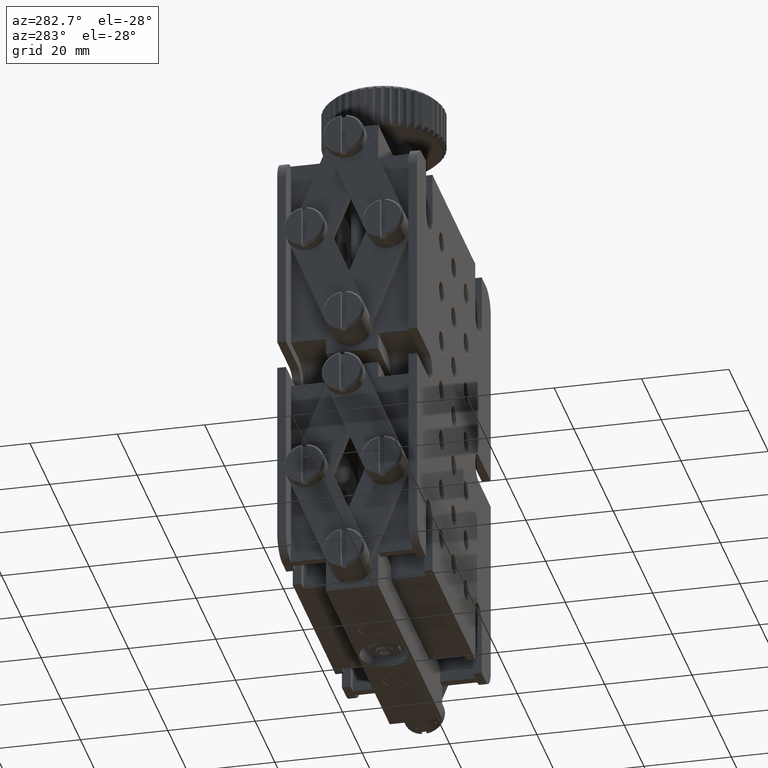
[diagram: clean part render]
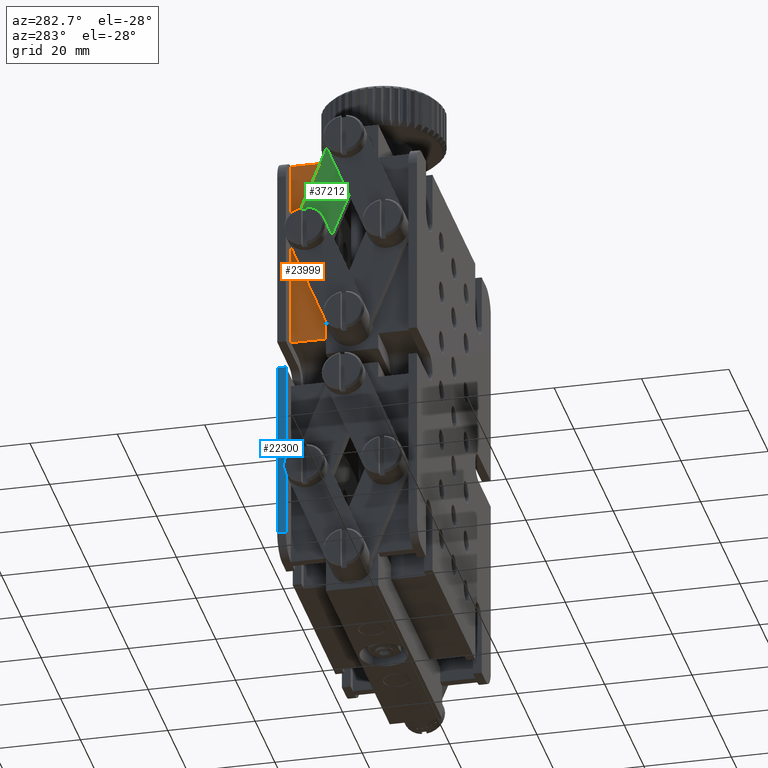
[diagram: same view with three faces highlighted in distinct colors, each labeled with its STEP entity id]
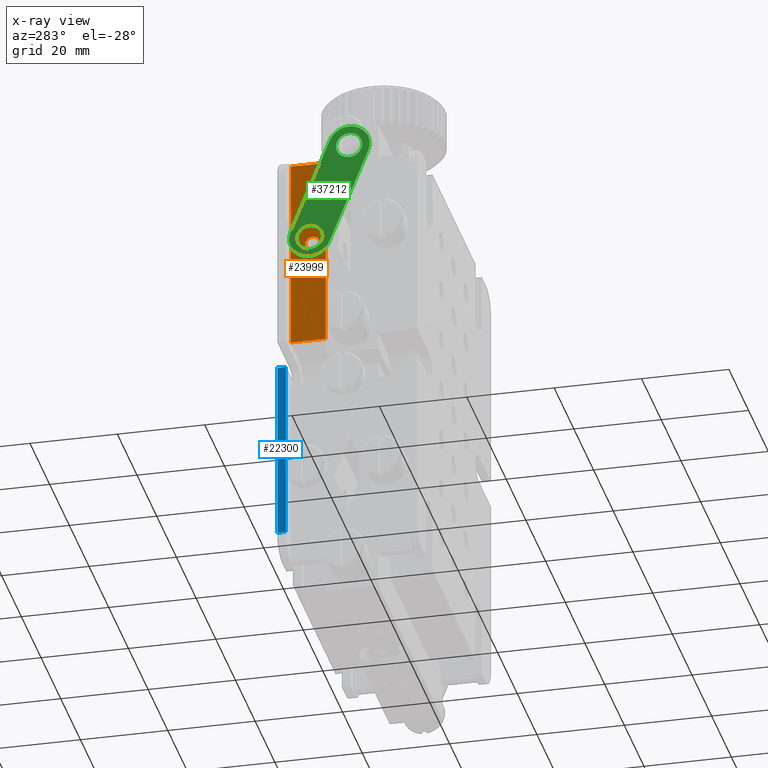
[diagram: x-ray of the same camera — body ghosted, the three highlighted faces saturated]
A machine part, auxiliary view with three faces highlighted in distinct colors.
The next image is the same camera in x-ray (body ghosted, the three faces saturated) — at least one of them is partly hidden behind the body in this view.
Their STEP definitions:

[orange] entity #23999 — the highlighted planar face has unit normal (1, -0, 0).
#737 = ORIENTED_EDGE ( 'NONE', *, *, #19887, .F. ) ;
#867 = ORIENTED_EDGE ( 'NONE', *, *, #3485, .F. ) ;
#1809 = VECTOR ( 'NONE', #17534, 1000.000000000000000 ) ;
#1864 = CARTESIAN_POINT ( 'NONE',  ( -32.49999999999997900, 14.99999999999987600, 29.99999999999981900 ) ) ;
#2259 = EDGE_LOOP ( 'NONE', ( #737, #35190 ) ) ;
#2713 = DIRECTION ( 'NONE',  ( -1.944780049803937700E-015, 3.469446951953613400E-018, 1.000000000000000000 ) ) ;
#3154 = EDGE_CURVE ( 'NONE', #4642, #39626, #9770, .T. ) ;
#3196 = LINE ( 'NONE', #15525, #20284 ) ;
#3485 = EDGE_CURVE ( 'NONE', #29186, #9886, #3196, .T. ) ;
#4642 = VERTEX_POINT ( 'NONE', #37792 ) ;
#5113 = DIRECTION ( 'NONE',  ( 0.0000000000000000000, 0.0000000000000000000, 1.000000000000000000 ) ) ;
#5135 = CARTESIAN_POINT ( 'NONE',  ( -32.50000000000002100, 19.99999999999998200, 49.99999999999982200 ) ) ;
#7116 = CARTESIAN_POINT ( 'NONE',  ( -32.50000000000002100, 11.99999999999998200, 49.99999999999982200 ) ) ;
#7176 = EDGE_CURVE ( 'NONE', #9886, #39626, #27454, .T. ) ;
#7471 = FACE_BOUND ( 'NONE', #2259, .T. ) ;
#8375 = DIRECTION ( 'NONE',  ( 1.944780049803937700E-015, -3.469446951953613400E-018, -1.000000000000000000 ) ) ;
#9613 = LINE ( 'NONE', #38423, #26694 ) ;
#9770 = LINE ( 'NONE', #7116, #26854 ) ;
#9886 = VERTEX_POINT ( 'NONE', #32085 ) ;
#9967 = CARTESIAN_POINT ( 'NONE',  ( -32.50000000000002100, 11.99999999999998200, 49.99999999999982200 ) ) ;
#11484 = PLANE ( 'NONE',  #25028 ) ;
#15525 = CARTESIAN_POINT ( 'NONE',  ( -32.50000000000002100, 19.99999999999998200, 49.99999999999982200 ) ) ;
#16009 = CARTESIAN_POINT ( 'NONE',  ( -32.49999999999997900, 14.99999999999987600, 29.99999999999981900 ) ) ;
#17431 = EDGE_LOOP ( 'NONE', ( #867, #41056, #32677, #31487 ) ) ;
#17503 = EDGE_CURVE ( 'NONE', #39594, #37895, #32674, .T. ) ;
#17534 = DIRECTION ( 'NONE',  ( -1.222721269176194200E-016, -1.000000000000000000, 3.469446951953613400E-018 ) ) ;
#19228 = DIRECTION ( 'NONE',  ( 0.0000000000000000000, 0.0000000000000000000, 1.000000000000000000 ) ) ;
#19887 = EDGE_CURVE ( 'NONE', #37895, #39594, #34874, .T. ) ;
#20284 = VECTOR ( 'NONE', #2713, 1000.000000000000000 ) ;
#21508 = CARTESIAN_POINT ( 'NONE',  ( -32.49999999999992900, 19.99999999999998200, 5.499999999999809000 ) ) ;
#23556 = FACE_OUTER_BOUND ( 'NONE', #17431, .T. ) ;
#23999 = ADVANCED_FACE ( 'NONE', ( #7471, #23556 ), #11484, .F. ) ;
#24357 = DIRECTION ( 'NONE',  ( -1.000000000000000000, 1.222721269176264700E-016, -1.944780049804103000E-015 ) ) ;
#25028 = AXIS2_PLACEMENT_3D ( 'NONE', #5135, #27623, #8375 ) ;
#26694 = VECTOR ( 'NONE', #41381, 1000.000000000000000 ) ;
#26854 = VECTOR ( 'NONE', #29575, 1000.000000000000000 ) ;
#27454 = LINE ( 'NONE', #33743, #1809 ) ;
#27623 = DIRECTION ( 'NONE',  ( 1.000000000000000000, -1.222721269176264400E-016, 1.944780049803937700E-015 ) ) ;
#27795 = EDGE_CURVE ( 'NONE', #29186, #4642, #9613, .T. ) ;
#29085 = AXIS2_PLACEMENT_3D ( 'NONE', #16009, #38422, #19228 ) ;
#29186 = VERTEX_POINT ( 'NONE', #21508 ) ;
#29575 = DIRECTION ( 'NONE',  ( -1.944780049803937700E-015, 3.469446951953613400E-018, 1.000000000000000000 ) ) ;
#30970 = CARTESIAN_POINT ( 'NONE',  ( -32.49999999999997900, 14.99999999999987600, 31.64999999999981000 ) ) ;
#31487 = ORIENTED_EDGE ( 'NONE', *, *, #7176, .F. ) ;
#32085 = CARTESIAN_POINT ( 'NONE',  ( -32.50000000000002100, 19.99999999999998200, 49.99999999999982200 ) ) ;
#32674 = CIRCLE ( 'NONE', #36236, 1.649999999999991700 ) ;
#32677 = ORIENTED_EDGE ( 'NONE', *, *, #3154, .T. ) ;
#33743 = CARTESIAN_POINT ( 'NONE',  ( -32.50000000000002100, 19.99999999999998200, 49.99999999999982200 ) ) ;
#34874 = CIRCLE ( 'NONE', #29085, 1.649999999999991700 ) ;
#35190 = ORIENTED_EDGE ( 'NONE', *, *, #17503, .F. ) ;
#35425 = CARTESIAN_POINT ( 'NONE',  ( -32.49999999999997900, 14.99999999999987600, 28.34999999999982700 ) ) ;
#36236 = AXIS2_PLACEMENT_3D ( 'NONE', #1864, #24357, #5113 ) ;
#37792 = CARTESIAN_POINT ( 'NONE',  ( -32.49999999999993600, 11.99999999999998200, 5.499999999999809900 ) ) ;
#37895 = VERTEX_POINT ( 'NONE', #30970 ) ;
#38422 = DIRECTION ( 'NONE',  ( -1.000000000000000000, 1.222721269176264700E-016, -1.944780049804103000E-015 ) ) ;
#38423 = CARTESIAN_POINT ( 'NONE',  ( -32.49999999999992900, 41.09502310972937500, 5.499999999999809900 ) ) ;
#39594 = VERTEX_POINT ( 'NONE', #35425 ) ;
#39626 = VERTEX_POINT ( 'NONE', #9967 ) ;
#41056 = ORIENTED_EDGE ( 'NONE', *, *, #27795, .T. ) ;
#41381 = DIRECTION ( 'NONE',  ( -1.222721269176194200E-016, -1.000000000000000000, 3.469446951953613400E-018 ) ) ;

[blue] entity #22300 — the highlighted planar face has unit normal (1, -0, 0).
#3554 = CARTESIAN_POINT ( 'NONE',  ( -37.49999999999991500, 21.99999999999998600, -3.250000000000200300 ) ) ;
#3571 = ORIENTED_EDGE ( 'NONE', *, *, #25687, .F. ) ;
#3722 = VECTOR ( 'NONE', #32859, 1000.000000000000000 ) ;
#5244 = ORIENTED_EDGE ( 'NONE', *, *, #36140, .F. ) ;
#6482 = LINE ( 'NONE', #11200, #15027 ) ;
#7513 = VERTEX_POINT ( 'NONE', #39771 ) ;
#8992 = EDGE_CURVE ( 'NONE', #23107, #19093, #34784, .T. ) ;
#11200 = CARTESIAN_POINT ( 'NONE',  ( -37.49999999999982900, 21.99999999999998600, -45.00000000000022700 ) ) ;
#11760 = DIRECTION ( 'NONE',  ( 1.000000000000000000, -1.222721269176264400E-016, 2.014168988843010000E-015 ) ) ;
#15027 = VECTOR ( 'NONE', #24267, 1000.000000000000000 ) ;
#15927 = EDGE_LOOP ( 'NONE', ( #3571, #34594, #5244, #22191 ) ) ;
#16670 = CARTESIAN_POINT ( 'NONE',  ( -37.49999999999991500, 29.99999999999998900, -3.250000000000200300 ) ) ;
#17015 = VECTOR ( 'NONE', #28466, 1000.000000000000000 ) ;
#17628 = VECTOR ( 'NONE', #39146, 1000.000000000000000 ) ;
#19093 = VERTEX_POINT ( 'NONE', #33346 ) ;
#21208 = PLANE ( 'NONE',  #32751 ) ;
#22191 = ORIENTED_EDGE ( 'NONE', *, *, #23973, .T. ) ;
#22300 = ADVANCED_FACE ( 'NONE', ( #40889 ), #21208, .F. ) ;
#23107 = VERTEX_POINT ( 'NONE', #3554 ) ;
#23973 = EDGE_CURVE ( 'NONE', #37592, #7513, #6482, .T. ) ;
#24267 = DIRECTION ( 'NONE',  ( -1.222721269176194200E-016, -1.000000000000000000, 3.469446951953613400E-018 ) ) ;
#25562 = LINE ( 'NONE', #31739, #17015 ) ;
#25687 = EDGE_CURVE ( 'NONE', #19093, #7513, #25562, .T. ) ;
#28466 = DIRECTION ( 'NONE',  ( 1.944780049803937700E-015, -3.469446951953613400E-018, -1.000000000000000000 ) ) ;
#29383 = LINE ( 'NONE', #29607, #3722 ) ;
#29607 = CARTESIAN_POINT ( 'NONE',  ( -37.49999999999982200, 21.99999999999998600, -50.00000000000023400 ) ) ;
#31026 = CARTESIAN_POINT ( 'NONE',  ( -37.49999999999982200, 21.99999999999998600, -50.00000000000023400 ) ) ;
#31739 = CARTESIAN_POINT ( 'NONE',  ( -37.50000000000002100, 19.99999999999998600, 49.99999999999980800 ) ) ;
#32751 = AXIS2_PLACEMENT_3D ( 'NONE', #31026, #11760, #34284 ) ;
#32859 = DIRECTION ( 'NONE',  ( -2.014168988843010000E-015, 3.469446951953621900E-018, 1.000000000000000000 ) ) ;
#33346 = CARTESIAN_POINT ( 'NONE',  ( -37.49999999999991500, 19.99999999999998600, -3.250000000000200300 ) ) ;
#34284 = DIRECTION ( 'NONE',  ( 2.014168988843010000E-015, -3.469446951953621900E-018, -1.000000000000000000 ) ) ;
#34594 = ORIENTED_EDGE ( 'NONE', *, *, #8992, .F. ) ;
#34784 = LINE ( 'NONE', #16670, #17628 ) ;
#36140 = EDGE_CURVE ( 'NONE', #37592, #23107, #29383, .T. ) ;
#37592 = VERTEX_POINT ( 'NONE', #38708 ) ;
#38708 = CARTESIAN_POINT ( 'NONE',  ( -37.49999999999982900, 21.99999999999998600, -45.00000000000022700 ) ) ;
#39146 = DIRECTION ( 'NONE',  ( -1.222721269176194200E-016, -1.000000000000000000, 3.469446951953613400E-018 ) ) ;
#39771 = CARTESIAN_POINT ( 'NONE',  ( -37.49999999999982900, 19.99999999999998600, -45.00000000000022700 ) ) ;
#40889 = FACE_OUTER_BOUND ( 'NONE', #15927, .T. ) ;

[green] entity #37212 — the highlighted planar face has unit normal (-1, -0, 0).
#516 = EDGE_CURVE ( 'NONE', #29502, #6767, #28377, .T. ) ;
#997 = AXIS2_PLACEMENT_3D ( 'NONE', #11364, #33855, #14610 ) ;
#1009 = AXIS2_PLACEMENT_3D ( 'NONE', #25124, #5875, #28343 ) ;
#1129 = CARTESIAN_POINT ( 'NONE',  ( -35.50000000000002100, 6.000000000000721200, 52.24859546128715900 ) ) ;
#1336 = PLANE ( 'NONE',  #21986 ) ;
#1481 = DIRECTION ( 'NONE',  ( -1.000000000000000000, -4.367837696716549100E-024, 3.364437317844229000E-024 ) ) ;
#2342 = VERTEX_POINT ( 'NONE', #2541 ) ;
#2541 = CARTESIAN_POINT ( 'NONE',  ( -35.50000000000002100, 19.40336785171307800, 31.78124999999970500 ) ) ;
#2862 = EDGE_CURVE ( 'NONE', #37524, #11499, #17871, .T. ) ;
#3003 = LINE ( 'NONE', #9662, #20094 ) ;
#3068 = CARTESIAN_POINT ( 'NONE',  ( -35.50000000000002100, 4.875000000000815300, 55.02966989394806800 ) ) ;
#3527 = CARTESIAN_POINT ( 'NONE',  ( -35.50000000000002100, 10.40336785171383100, 54.02984546128700300 ) ) ;
#4026 = FACE_OUTER_BOUND ( 'NONE', #13894, .T. ) ;
#4383 = DIRECTION ( 'NONE',  ( 0.0000000000000000000, -0.3749999999999688600, 0.9270248108869705300 ) ) ;
#4400 = LINE ( 'NONE', #9004, #20510 ) ;
#5021 = FACE_BOUND ( 'NONE', #12504, .T. ) ;
#5425 = DIRECTION ( 'NONE',  ( -1.000000000000000000, -4.367837696716549100E-024, 3.364437317844229000E-024 ) ) ;
#5782 = ORIENTED_EDGE ( 'NONE', *, *, #14381, .T. ) ;
#5875 = DIRECTION ( 'NONE',  ( -1.000000000000000000, -4.367837696716549100E-024, 3.364437317844229000E-024 ) ) ;
#6767 = VERTEX_POINT ( 'NONE', #27389 ) ;
#6894 = EDGE_CURVE ( 'NONE', #26082, #34783, #4400, .T. ) ;
#8679 = EDGE_CURVE ( 'NONE', #2342, #8937, #36321, .T. ) ;
#8937 = VERTEX_POINT ( 'NONE', #13155 ) ;
#9004 = CARTESIAN_POINT ( 'NONE',  ( -35.50000000000002100, 10.59663214828685400, 28.21875000000000700 ) ) ;
#9377 = ORIENTED_EDGE ( 'NONE', *, *, #27701, .F. ) ;
#9662 = CARTESIAN_POINT ( 'NONE',  ( -35.50000000000002100, 19.40336785171307500, 31.78124999999970500 ) ) ;
#11364 = CARTESIAN_POINT ( 'NONE',  ( -35.50000000000002100, 14.99999999999996600, 29.99999999999985800 ) ) ;
#11453 = VERTEX_POINT ( 'NONE', #3527 ) ;
#11499 = VERTEX_POINT ( 'NONE', #23053 ) ;
#12117 = CARTESIAN_POINT ( 'NONE',  ( -35.50000000000002100, 14.99999999999996600, 29.99999999999985800 ) ) ;
#12244 = DIRECTION ( 'NONE',  ( 4.756856004584182100E-024, -0.3749999999999685800, 0.9270248108869706400 ) ) ;
#12504 = EDGE_LOOP ( 'NONE', ( #24497, #24551 ) ) ;
#13155 = CARTESIAN_POINT ( 'NONE',  ( -35.50000000000002100, 16.78124999999981900, 25.59663214828674400 ) ) ;
#13894 = EDGE_LOOP ( 'NONE', ( #15973, #27128, #19025, #5782, #39220 ) ) ;
#14182 = CIRCLE ( 'NONE', #28606, 4.750000000000001800 ) ;
#14381 = EDGE_CURVE ( 'NONE', #8937, #26082, #14182, .T. ) ;
#14610 = DIRECTION ( 'NONE',  ( 0.0000000000000000000, -0.3749999999999684100, 0.9270248108869705300 ) ) ;
#14804 = CARTESIAN_POINT ( 'NONE',  ( -35.50000000000002100, 14.99999999999996600, 29.99999999999985800 ) ) ;
#15354 = DIRECTION ( 'NONE',  ( 0.0000000000000000000, -0.3749999999999685300, 0.9270248108869706400 ) ) ;
#15585 = DIRECTION ( 'NONE',  ( 0.0000000000000000000, -0.3749999999999685300, 0.9270248108869706400 ) ) ;
#15973 = ORIENTED_EDGE ( 'NONE', *, *, #20533, .T. ) ;
#16279 = AXIS2_PLACEMENT_3D ( 'NONE', #18787, #38006, #15585 ) ;
#16645 = CIRCLE ( 'NONE', #20708, 3.000000000000000000 ) ;
#17871 = CIRCLE ( 'NONE', #25541, 2.999999999999996900 ) ;
#17908 = CARTESIAN_POINT ( 'NONE',  ( -35.50000000000002100, 1.596632148287608500, 50.46734546128730200 ) ) ;
#18003 = DIRECTION ( 'NONE',  ( 0.0000000000000000000, -0.3749999999999684100, 0.9270248108869705300 ) ) ;
#18014 = CARTESIAN_POINT ( 'NONE',  ( -35.50000000000002100, 10.59663214828685400, 28.21875000000000700 ) ) ;
#18787 = CARTESIAN_POINT ( 'NONE',  ( -35.50000000000002100, 14.99999999999996600, 29.99999999999985800 ) ) ;
#19025 = ORIENTED_EDGE ( 'NONE', *, *, #8679, .T. ) ;
#20094 = VECTOR ( 'NONE', #32186, 1000.000000000000000 ) ;
#20510 = VECTOR ( 'NONE', #12244, 1000.000000000000000 ) ;
#20533 = EDGE_CURVE ( 'NONE', #34783, #11453, #39821, .T. ) ;
#20572 = EDGE_LOOP ( 'NONE', ( #38509, #9377 ) ) ;
#20708 = AXIS2_PLACEMENT_3D ( 'NONE', #12117, #34595, #15354 ) ;
#20772 = CARTESIAN_POINT ( 'NONE',  ( -35.50000000000002100, 6.000000000000721200, 52.24859546128715900 ) ) ;
#21986 = AXIS2_PLACEMENT_3D ( 'NONE', #20772, #1481, #23992 ) ;
#22149 = FACE_BOUND ( 'NONE', #20572, .T. ) ;
#23053 = CARTESIAN_POINT ( 'NONE',  ( -35.50000000000002100, 7.125000000000626200, 49.46752102862624400 ) ) ;
#23664 = DIRECTION ( 'NONE',  ( -1.000000000000000000, -4.367837696716549100E-024, 3.364437317844229000E-024 ) ) ;
#23992 = DIRECTION ( 'NONE',  ( 4.756856004584182100E-024, -0.3749999999999685800, 0.9270248108869706400 ) ) ;
#24497 = ORIENTED_EDGE ( 'NONE', *, *, #516, .F. ) ;
#24551 = ORIENTED_EDGE ( 'NONE', *, *, #41671, .F. ) ;
#24680 = CARTESIAN_POINT ( 'NONE',  ( -35.50000000000002100, 6.000000000000721200, 52.24859546128715900 ) ) ;
#25083 = AXIS2_PLACEMENT_3D ( 'NONE', #1129, #23664, #4383 ) ;
#25124 = CARTESIAN_POINT ( 'NONE',  ( -35.50000000000002100, 6.000000000000721200, 52.24859546128715900 ) ) ;
#25541 = AXIS2_PLACEMENT_3D ( 'NONE', #24680, #5425, #27891 ) ;
#26082 = VERTEX_POINT ( 'NONE', #18014 ) ;
#26774 = CARTESIAN_POINT ( 'NONE',  ( -35.50000000000002100, 13.87500000000006000, 32.78107443266076600 ) ) ;
#27128 = ORIENTED_EDGE ( 'NONE', *, *, #33608, .T. ) ;
#27215 = CIRCLE ( 'NONE', #1009, 2.999999999999996900 ) ;
#27389 = CARTESIAN_POINT ( 'NONE',  ( -35.50000000000002100, 16.12499999999987200, 27.21892556733894600 ) ) ;
#27701 = EDGE_CURVE ( 'NONE', #11499, #37524, #27215, .T. ) ;
#27891 = DIRECTION ( 'NONE',  ( 0.0000000000000000000, -0.3749999999999689100, 0.9270248108869705300 ) ) ;
#28343 = DIRECTION ( 'NONE',  ( 0.0000000000000000000, -0.3749999999999689100, 0.9270248108869705300 ) ) ;
#28377 = CIRCLE ( 'NONE', #16279, 3.000000000000000000 ) ;
#28606 = AXIS2_PLACEMENT_3D ( 'NONE', #14804, #37250, #18003 ) ;
#29502 = VERTEX_POINT ( 'NONE', #26774 ) ;
#32186 = DIRECTION ( 'NONE',  ( -4.756856004584182100E-024, 0.3749999999999685800, -0.9270248108869706400 ) ) ;
#33608 = EDGE_CURVE ( 'NONE', #11453, #2342, #3003, .T. ) ;
#33855 = DIRECTION ( 'NONE',  ( -1.000000000000000000, -4.367837696716549100E-024, 3.364437317844229000E-024 ) ) ;
#34595 = DIRECTION ( 'NONE',  ( -1.000000000000000000, -4.367837696716549100E-024, 3.364437317844229000E-024 ) ) ;
#34783 = VERTEX_POINT ( 'NONE', #17908 ) ;
#36321 = CIRCLE ( 'NONE', #997, 4.750000000000001800 ) ;
#37212 = ADVANCED_FACE ( 'NONE', ( #22149, #5021, #4026 ), #1336, .T. ) ;
#37250 = DIRECTION ( 'NONE',  ( -1.000000000000000000, -4.367837696716549100E-024, 3.364437317844229000E-024 ) ) ;
#37524 = VERTEX_POINT ( 'NONE', #3068 ) ;
#38006 = DIRECTION ( 'NONE',  ( -1.000000000000000000, -4.367837696716549100E-024, 3.364437317844229000E-024 ) ) ;
#38509 = ORIENTED_EDGE ( 'NONE', *, *, #2862, .F. ) ;
#39220 = ORIENTED_EDGE ( 'NONE', *, *, #6894, .T. ) ;
#39821 = CIRCLE ( 'NONE', #25083, 4.749999999999998200 ) ;
#41671 = EDGE_CURVE ( 'NONE', #6767, #29502, #16645, .T. ) ;